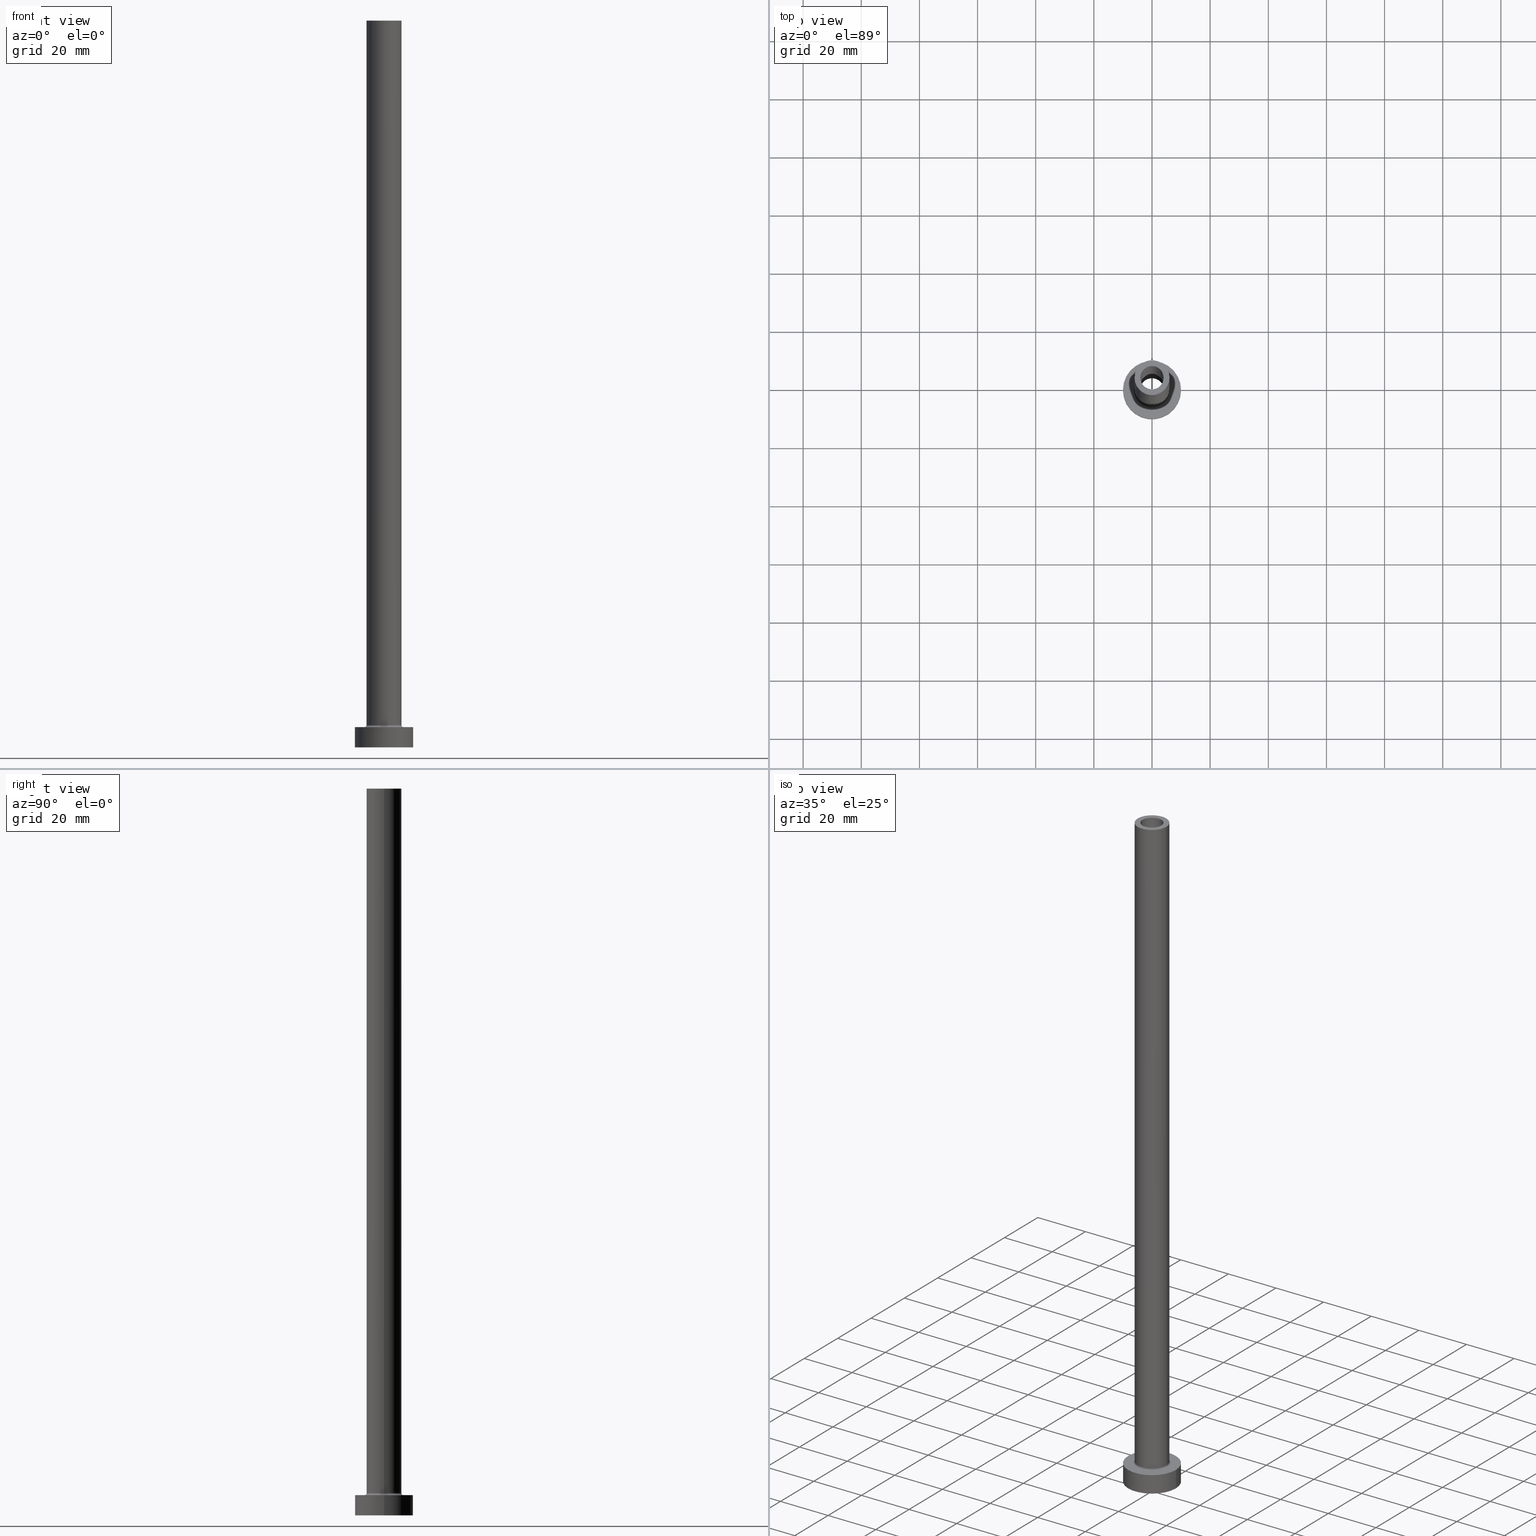
[diagram: canonical four-view strip — front | top / right | iso, engineering-drawing reading convention]
A machine part, canonical four-view strip (front | top / right | iso — engineering-drawing reading convention). The complete STEP part file that produces these views, byte-faithful:
ISO-10303-21;
HEADER;
FILE_DESCRIPTION (( 'STEP AP203' ),
    '1' );
FILE_NAME ('2ead.STEP',
    '2023-02-13T09:09:57',
    ( '' ),
    ( '' ),
    'SwSTEP 2.0',
    'SolidWorks 2019',
    '' );
FILE_SCHEMA (( 'CONFIG_CONTROL_DESIGN' ));
ENDSEC;

DATA;
#1 = DIRECTION ( 'NONE',  ( -1.000000000000000000, 0.000000000000000000, 0.000000000000000000 ) ) ;
#2 = ADVANCED_FACE ( 'NONE', ( #325 ), #118, .F. ) ;
#3 = EDGE_LOOP ( 'NONE', ( #391, #61 ) ) ;
#4 = DIRECTION ( 'NONE',  ( 0.000000000000000000, 0.000000000000000000, 1.000000000000000000 ) ) ;
#5 = PERSON_AND_ORGANIZATION ( #242, #324 ) ;
#6 = ORIENTED_EDGE ( 'NONE', *, *, #298, .T. ) ;
#7 = CARTESIAN_POINT ( 'NONE',  ( 6.700000000000001066, 0.000000000000000000, 7.700000000000012612 ) ) ;
#8 = SHAPE_DEFINITION_REPRESENTATION ( #320, #196 ) ;
#9 = ORIENTED_EDGE ( 'NONE', *, *, #22, .T. ) ;
#10 = DIRECTION ( 'NONE',  ( 1.000000000000000000, 0.000000000000000000, 0.000000000000000000 ) ) ;
#11 = CARTESIAN_POINT ( 'NONE',  ( 4.150000000000000355, 5.082284216461514170E-16, 205.0000000000000284 ) ) ;
#12 = DIRECTION ( 'NONE',  ( 1.000000000000000000, 0.000000000000000000, 0.000000000000000000 ) ) ;
#13 = EDGE_CURVE ( 'NONE', #71, #453, #461, .T. ) ;
#14 = FACE_OUTER_BOUND ( 'NONE', #422, .T. ) ;
#15 = EDGE_CURVE ( 'NONE', #453, #425, #218, .T. ) ;
#16 = LINE ( 'NONE', #272, #119 ) ;
#17 = ORIENTED_EDGE ( 'NONE', *, *, #398, .T. ) ;
#18 = CC_DESIGN_PERSON_AND_ORGANIZATION_ASSIGNMENT ( #437, #35, ( #145 ) ) ;
#19 = ORIENTED_EDGE ( 'NONE', *, *, #101, .T. ) ;
#20 = ORIENTED_EDGE ( 'NONE', *, *, #327, .F. ) ;
#21 = CARTESIAN_POINT ( 'NONE',  ( 0.000000000000000000, 0.000000000000000000, 0.000000000000000000 ) ) ;
#22 = EDGE_CURVE ( 'NONE', #147, #438, #431, .T. ) ;
#23 = ORIENTED_EDGE ( 'NONE', *, *, #124, .F. ) ;
#24 = CARTESIAN_POINT ( 'NONE',  ( -6.000000000000000888, 0.000000000000000000, 250.0000000000000000 ) ) ;
#25 = CIRCLE ( 'NONE', #137, 10.00000000000000000 ) ;
#26 = ORIENTED_EDGE ( 'NONE', *, *, #410, .F. ) ;
#27 = LINE ( 'NONE', #64, #408 ) ;
#28 = AXIS2_PLACEMENT_3D ( 'NONE', #208, #253, #455 ) ;
#29 = CC_DESIGN_APPROVAL ( #179, ( #145 ) ) ;
#30 = VERTEX_POINT ( 'NONE', #328 ) ;
#31 = DIRECTION ( 'NONE',  ( 0.000000000000000000, 0.000000000000000000, -1.000000000000000000 ) ) ;
#32 = EDGE_CURVE ( 'NONE', #316, #404, #299, .T. ) ;
#33 = DIRECTION ( 'NONE',  ( 0.000000000000000000, 0.000000000000000000, -1.000000000000000000 ) ) ;
#34 = CC_DESIGN_PERSON_AND_ORGANIZATION_ASSIGNMENT ( #5, #146, ( #56 ) ) ;
#35 = PERSON_AND_ORGANIZATION_ROLE ( 'creator' ) ;
#36 = DIRECTION ( 'NONE',  ( 0.000000000000000000, 0.000000000000000000, -1.000000000000000000 ) ) ;
#37 = DIRECTION ( 'NONE',  ( 1.000000000000000000, 0.000000000000000000, 0.000000000000000000 ) ) ;
#38 = AXIS2_PLACEMENT_3D ( 'NONE', #392, #382, #207 ) ;
#39 = ORIENTED_EDGE ( 'NONE', *, *, #133, .F. ) ;
#40 = LINE ( 'NONE', #326, #252 ) ;
#41 = ORIENTED_EDGE ( 'NONE', *, *, #447, .F. ) ;
#42 = CARTESIAN_POINT ( 'NONE',  ( 0.000000000000000000, 0.000000000000000000, 7.700000000000012612 ) ) ;
#43 = DIRECTION ( 'NONE',  ( 1.000000000000000000, 0.000000000000000000, 0.000000000000000000 ) ) ;
#44 = FACE_OUTER_BOUND ( 'NONE', #131, .T. ) ;
#45 = AXIS2_PLACEMENT_3D ( 'NONE', #194, #74, #335 ) ;
#46 = CIRCLE ( 'NONE', #371, 10.00000000000000000 ) ;
#47 = CIRCLE ( 'NONE', #169, 10.00000000000000000 ) ;
#48 = FACE_OUTER_BOUND ( 'NONE', #279, .T. ) ;
#49 = CARTESIAN_POINT ( 'NONE',  ( 0.000000000000000000, 0.000000000000000000, 7.700000000000012612 ) ) ;
#50 = DIRECTION ( 'NONE',  ( 0.000000000000000000, 0.000000000000000000, 1.000000000000000000 ) ) ;
#51 =( NAMED_UNIT ( * ) SI_UNIT ( $, .STERADIAN. ) SOLID_ANGLE_UNIT ( ) );
#52 = EDGE_CURVE ( 'NONE', #370, #316, #25, .T. ) ;
#53 = CARTESIAN_POINT ( 'NONE',  ( 4.150000000000000355, 5.082284216461514170E-16, 0.000000000000000000 ) ) ;
#54 = EDGE_LOOP ( 'NONE', ( #343, #121, #6, #265 ) ) ;
#55 = CC_DESIGN_PERSON_AND_ORGANIZATION_ASSIGNMENT ( #60, #387, ( #65 ) ) ;
#56 = PRODUCT_DEFINITION_FORMATION_WITH_SPECIFIED_SOURCE ( 'LIBOVOLN�', '', #65, .NOT_KNOWN. ) ;
#57 = APPROVAL_DATE_TIME ( #130, #179 ) ;
#58 = DIRECTION ( 'NONE',  ( 0.000000000000000000, 0.000000000000000000, 1.000000000000000000 ) ) ;
#59 = CC_DESIGN_DATE_AND_TIME_ASSIGNMENT ( #70, #390, ( #66 ) ) ;
#60 = PERSON_AND_ORGANIZATION ( #242, #324 ) ;
#61 = ORIENTED_EDGE ( 'NONE', *, *, #360, .T. ) ;
#62 = CARTESIAN_POINT ( 'NONE',  ( 0.000000000000000000, 0.000000000000000000, 250.0000000000000000 ) ) ;
#63 = ORIENTED_EDGE ( 'NONE', *, *, #87, .F. ) ;
#64 = CARTESIAN_POINT ( 'NONE',  ( -6.000000000000000888, 0.000000000000000000, 250.0000000000000000 ) ) ;
#65 = PRODUCT ( '2ead', '2ead', '', ( #274 ) ) ;
#66 = SECURITY_CLASSIFICATION ( '', '', #149 ) ;
#67 = DIRECTION ( 'NONE',  ( -0.000000000000000000, -0.000000000000000000, -1.000000000000000000 ) ) ;
#68 = EDGE_LOOP ( 'NONE', ( #348, #281, #103, #41 ) ) ;
#69 = CARTESIAN_POINT ( 'NONE',  ( 10.00000000000000000, 1.224646799147353256E-15, 0.000000000000000000 ) ) ;
#70 = DATE_AND_TIME ( #231, #409 ) ;
#71 = VERTEX_POINT ( 'NONE', #11 ) ;
#72 = DIRECTION ( 'NONE',  ( 0.000000000000000000, 0.000000000000000000, 1.000000000000000000 ) ) ;
#73 = APPROVAL_STATUS ( 'not_yet_approved' ) ;
#74 = DIRECTION ( 'NONE',  ( -0.000000000000000000, -0.000000000000000000, -1.000000000000000000 ) ) ;
#75 = DIRECTION ( 'NONE',  ( 1.000000000000000000, 0.000000000000000000, 0.000000000000000000 ) ) ;
#76 = ADVANCED_FACE ( 'NONE', ( #365, #48 ), #338, .T. ) ;
#77 = DATE_AND_TIME ( #323, #434 ) ;
#78 = CARTESIAN_POINT ( 'NONE',  ( 0.000000000000000000, 0.000000000000000000, 250.0000000000000000 ) ) ;
#79 = CARTESIAN_POINT ( 'NONE',  ( -6.700000000000001066, 8.205133554287267548E-16, 7.700000000000012612 ) ) ;
#80 = PERSON_AND_ORGANIZATION_ROLE ( 'design_supplier' ) ;
#81 = CARTESIAN_POINT ( 'NONE',  ( 0.000000000000000000, 0.000000000000000000, 7.000000000000000000 ) ) ;
#82 = CARTESIAN_POINT ( 'NONE',  ( 0.000000000000000000, 0.000000000000000000, 205.0000000000000284 ) ) ;
#83 = VERTEX_POINT ( 'NONE', #267 ) ;
#84 = MANIFOLD_SOLID_BREP ( 'Odebrat vysunut�m4', #341 ) ;
#85 = ORIENTED_EDGE ( 'NONE', *, *, #13, .F. ) ;
#86 = ADVANCED_FACE ( 'NONE', ( #427 ), #256, .F. ) ;
#87 = EDGE_CURVE ( 'NONE', #243, #404, #293, .T. ) ;
#88 = AXIS2_PLACEMENT_3D ( 'NONE', #79, #292, #117 ) ;
#89 = DIRECTION ( 'NONE',  ( 0.000000000000000000, 0.000000000000000000, -1.000000000000000000 ) ) ;
#90 = CARTESIAN_POINT ( 'NONE',  ( 0.000000000000000000, 0.000000000000000000, 7.000000000000000000 ) ) ;
#91 = VERTEX_POINT ( 'NONE', #235 ) ;
#92 = CYLINDRICAL_SURFACE ( 'NONE', #176, 4.000000000000000000 ) ;
#93 = DIRECTION ( 'NONE',  ( -0.000000000000000000, -0.000000000000000000, -1.000000000000000000 ) ) ;
#94 = APPLICATION_CONTEXT ( 'configuration controlled 3d designs of mechanical parts and assemblies' ) ;
#95 = APPLICATION_PROTOCOL_DEFINITION ( 'international standard', 'config_control_design', 1994, #94 ) ;
#96 = EDGE_LOOP ( 'NONE', ( #39, #375, #429, #23 ) ) ;
#97 = AXIS2_PLACEMENT_3D ( 'NONE', #285, #93, #163 ) ;
#98 = FACE_BOUND ( 'NONE', #396, .T. ) ;
#99 = ORIENTED_EDGE ( 'NONE', *, *, #330, .T. ) ;
#100 = FACE_OUTER_BOUND ( 'NONE', #68, .T. ) ;
#101 = EDGE_CURVE ( 'NONE', #438, #135, #340, .T. ) ;
#102 = CALENDAR_DATE ( 2023, 13, 2 ) ;
#103 = ORIENTED_EDGE ( 'NONE', *, *, #15, .T. ) ;
#104 = DIRECTION ( 'NONE',  ( 0.000000000000000000, 0.000000000000000000, 1.000000000000000000 ) ) ;
#105 = COORDINATED_UNIVERSAL_TIME_OFFSET ( 1, 0, .AHEAD. ) ;
#106 = DIRECTION ( 'NONE',  ( 0.000000000000000000, 0.000000000000000000, 1.000000000000000000 ) ) ;
#107 = CARTESIAN_POINT ( 'NONE',  ( 0.000000000000000000, 0.000000000000000000, 205.0000000000000284 ) ) ;
#108 = CIRCLE ( 'NONE', #38, 4.150000000000000355 ) ;
#109 = APPROVAL_PERSON_ORGANIZATION ( #433, #204, #334 ) ;
#110 = DATE_AND_TIME ( #361, #224 ) ;
#111 = ORIENTED_EDGE ( 'NONE', *, *, #133, .T. ) ;
#112 = DIRECTION ( 'NONE',  ( 0.000000000000000000, 0.000000000000000000, 1.000000000000000000 ) ) ;
#113 = CARTESIAN_POINT ( 'NONE',  ( -4.150000000000000355, 0.000000000000000000, 0.000000000000000000 ) ) ;
#114 = ADVANCED_FACE ( 'NONE', ( #197, #14 ), #120, .F. ) ;
#115 = CARTESIAN_POINT ( 'NONE',  ( 10.00000000000000000, 1.224646799147353256E-15, 7.000000000000000000 ) ) ;
#116 = ADVANCED_FACE ( 'NONE', ( #245 ), #132, .T. ) ;
#117 = DIRECTION ( 'NONE',  ( -1.000000000000000000, 1.224646799147353454E-16, 0.000000000000000000 ) ) ;
#118 = TOROIDAL_SURFACE ( 'NONE', #258, 6.700000000000001066, 0.6999999999999999556 ) ;
#119 = VECTOR ( 'NONE', #89, 1000.000000000000000 ) ;
#120 = PLANE ( 'NONE',  #189 ) ;
#121 = ORIENTED_EDGE ( 'NONE', *, *, #52, .F. ) ;
#122 = VECTOR ( 'NONE', #443, 1000.000000000000000 ) ;
#123 = CIRCLE ( 'NONE', #315, 4.150000000000000355 ) ;
#124 = EDGE_CURVE ( 'NONE', #203, #212, #27, .T. ) ;
#125 = ORIENTED_EDGE ( 'NONE', *, *, #200, .F. ) ;
#126 = CARTESIAN_POINT ( 'NONE',  ( -10.00000000000000000, 0.000000000000000000, 0.000000000000000000 ) ) ;
#127 = ORIENTED_EDGE ( 'NONE', *, *, #401, .T. ) ;
#128 = AXIS2_PLACEMENT_3D ( 'NONE', #107, #260, #151 ) ;
#129 = CARTESIAN_POINT ( 'NONE',  ( 0.000000000000000000, 0.000000000000000000, 216.7379725676967155 ) ) ;
#130 = DATE_AND_TIME ( #167, #416 ) ;
#131 = EDGE_LOOP ( 'NONE', ( #406, #354, #160, #247 ) ) ;
#132 = CYLINDRICAL_SURFACE ( 'NONE', #385, 10.00000000000000000 ) ;
#133 = EDGE_CURVE ( 'NONE', #254, #203, #219, .T. ) ;
#134 = APPLICATION_PROTOCOL_DEFINITION ( 'international standard', 'config_control_design', 1994, #185 ) ;
#135 = VERTEX_POINT ( 'NONE', #314 ) ;
#136 = CARTESIAN_POINT ( 'NONE',  ( -4.000000000000000000, 0.000000000000000000, 250.0000000000000000 ) ) ;
#137 = AXIS2_PLACEMENT_3D ( 'NONE', #81, #225, #232 ) ;
#138 = ORIENTED_EDGE ( 'NONE', *, *, #22, .F. ) ;
#139 = AXIS2_PLACEMENT_3D ( 'NONE', #49, #4, #428 ) ;
#140 = DIRECTION ( 'NONE',  ( -1.000000000000000000, 0.000000000000000000, 0.000000000000000000 ) ) ;
#141 = DESIGN_CONTEXT ( 'detailed design', #94, 'design' ) ;
#142 = EDGE_LOOP ( 'NONE', ( #305, #127, #363, #295 ) ) ;
#143 = ORIENTED_EDGE ( 'NONE', *, *, #199, .F. ) ;
#144 = CARTESIAN_POINT ( 'NONE',  ( 0.000000000000000000, 0.000000000000000000, 250.0000000000000000 ) ) ;
#145 = PRODUCT_DEFINITION ( 'NEZN�M�', '', #56, #141 ) ;
#146 = PERSON_AND_ORGANIZATION_ROLE ( 'creator' ) ;
#147 = VERTEX_POINT ( 'NONE', #136 ) ;
#148 = CARTESIAN_POINT ( 'NONE',  ( -4.000000000000000000, 0.000000000000000000, 205.0000000000000284 ) ) ;
#149 = SECURITY_CLASSIFICATION_LEVEL ( 'unclassified' ) ;
#150 = VERTEX_POINT ( 'NONE', #349 ) ;
#151 = DIRECTION ( 'NONE',  ( 1.000000000000000000, 0.000000000000000000, 0.000000000000000000 ) ) ;
#152 = CARTESIAN_POINT ( 'NONE',  ( 0.000000000000000000, 0.000000000000000000, 7.000000000000000000 ) ) ;
#153 = DIRECTION ( 'NONE',  ( 1.000000000000000000, 0.000000000000000000, 0.000000000000000000 ) ) ;
#154 = DIRECTION ( 'NONE',  ( 1.000000000000000000, 0.000000000000000000, 0.000000000000000000 ) ) ;
#155 = ORIENTED_EDGE ( 'NONE', *, *, #413, .T. ) ;
#156 = AXIS2_PLACEMENT_3D ( 'NONE', #373, #289, #153 ) ;
#157 = EDGE_CURVE ( 'NONE', #254, #83, #351, .T. ) ;
#158 = ADVANCED_FACE ( 'NONE', ( #165 ), #426, .T. ) ;
#159 = ORIENTED_EDGE ( 'NONE', *, *, #291, .F. ) ;
#160 = ORIENTED_EDGE ( 'NONE', *, *, #124, .T. ) ;
#161 = CIRCLE ( 'NONE', #322, 6.000000000000000888 ) ;
#162 = CC_DESIGN_PERSON_AND_ORGANIZATION_ASSIGNMENT ( #174, #80, ( #56 ) ) ;
#163 = DIRECTION ( 'NONE',  ( -1.000000000000000000, 0.000000000000000000, 0.000000000000000000 ) ) ;
#164 = ADVANCED_FACE ( 'NONE', ( #452 ), #172, .T. ) ;
#165 = FACE_OUTER_BOUND ( 'NONE', #271, .T. ) ;
#166 = VECTOR ( 'NONE', #402, 1000.000000000000000 ) ;
#167 = CALENDAR_DATE ( 2023, 13, 2 ) ;
#168 = ORIENTED_EDGE ( 'NONE', *, *, #398, .F. ) ;
#169 = AXIS2_PLACEMENT_3D ( 'NONE', #223, #337, #10 ) ;
#170 = CARTESIAN_POINT ( 'NONE',  ( 6.000000000000000888, 7.347880794884120722E-16, 250.0000000000000000 ) ) ;
#171 = ORIENTED_EDGE ( 'NONE', *, *, #227, .T. ) ;
#172 = CYLINDRICAL_SURFACE ( 'NONE', #240, 6.000000000000000888 ) ;
#173 = CYLINDRICAL_SURFACE ( 'NONE', #336, 4.150000000000000355 ) ;
#174 = PERSON_AND_ORGANIZATION ( #242, #324 ) ;
#175 = DIRECTION ( 'NONE',  ( -1.000000000000000000, 0.000000000000000000, 0.000000000000000000 ) ) ;
#176 = AXIS2_PLACEMENT_3D ( 'NONE', #211, #248, #140 ) ;
#177 = DIRECTION ( 'NONE',  ( -0.000000000000000000, -0.000000000000000000, -1.000000000000000000 ) ) ;
#178 = CC_DESIGN_APPROVAL ( #204, ( #56 ) ) ;
#179 = APPROVAL ( #350, 'NEUR�EN�' ) ;
#180 = PERSON_AND_ORGANIZATION_ROLE ( 'classification_officer' ) ;
#181 = ORIENTED_EDGE ( 'NONE', *, *, #199, .T. ) ;
#182 = DIRECTION ( 'NONE',  ( 0.000000000000000000, 0.000000000000000000, -1.000000000000000000 ) ) ;
#183 = COORDINATED_UNIVERSAL_TIME_OFFSET ( 1, 0, .AHEAD. ) ;
#184 = ORIENTED_EDGE ( 'NONE', *, *, #101, .F. ) ;
#185 = APPLICATION_CONTEXT ( 'configuration controlled 3d designs of mechanical parts and assemblies' ) ;
#186 = LINE ( 'NONE', #333, #306 ) ;
#187 = COORDINATED_UNIVERSAL_TIME_OFFSET ( 1, 0, .AHEAD. ) ;
#188 = ORIENTED_EDGE ( 'NONE', *, *, #418, .F. ) ;
#189 = AXIS2_PLACEMENT_3D ( 'NONE', #374, #50, #456 ) ;
#190 = ADVANCED_FACE ( 'NONE', ( #98, #317 ), #249, .F. ) ;
#191 = DIRECTION ( 'NONE',  ( -0.000000000000000000, -0.000000000000000000, -1.000000000000000000 ) ) ;
#192 = AXIS2_PLACEMENT_3D ( 'NONE', #144, #177, #1 ) ;
#193 =( GEOMETRIC_REPRESENTATION_CONTEXT ( 3 ) GLOBAL_UNCERTAINTY_ASSIGNED_CONTEXT ( ( #216 ) ) GLOBAL_UNIT_ASSIGNED_CONTEXT ( ( #309, #450, #51 ) ) REPRESENTATION_CONTEXT ( 'NONE', 'WORKASPACE' ) );
#194 = CARTESIAN_POINT ( 'NONE',  ( 0.000000000000000000, 0.000000000000000000, 0.000000000000000000 ) ) ;
#195 = CARTESIAN_POINT ( 'NONE',  ( 0.000000000000000000, 0.000000000000000000, 7.000000000000000000 ) ) ;
#196 = ADVANCED_BREP_SHAPE_REPRESENTATION ( '2ead', ( #84, #395 ), #193 ) ;
#197 = FACE_BOUND ( 'NONE', #210, .T. ) ;
#198 = ADVANCED_FACE ( 'NONE', ( #353 ), #347, .F. ) ;
#199 = EDGE_CURVE ( 'NONE', #438, #147, #394, .T. ) ;
#200 = EDGE_CURVE ( 'NONE', #83, #212, #161, .T. ) ;
#201 = CIRCLE ( 'NONE', #88, 0.7000000000000000666 ) ;
#202 = ADVANCED_FACE ( 'NONE', ( #417 ), #92, .F. ) ;
#203 = VERTEX_POINT ( 'NONE', #24 ) ;
#204 = APPROVAL ( #294, 'NEUR�EN�' ) ;
#205 = AXIS2_PLACEMENT_3D ( 'NONE', #195, #264, #75 ) ;
#206 = LOCAL_TIME ( 10, 9, 57.00000000000000000, #183 ) ;
#207 = DIRECTION ( 'NONE',  ( 1.000000000000000000, 0.000000000000000000, 0.000000000000000000 ) ) ;
#208 = CARTESIAN_POINT ( 'NONE',  ( 0.000000000000000000, 0.000000000000000000, 0.000000000000000000 ) ) ;
#209 = ADVANCED_FACE ( 'NONE', ( #100 ), #173, .F. ) ;
#210 = EDGE_LOOP ( 'NONE', ( #393, #17 ) ) ;
#211 = CARTESIAN_POINT ( 'NONE',  ( 0.000000000000000000, 0.000000000000000000, 250.0000000000000000 ) ) ;
#212 = VERTEX_POINT ( 'NONE', #458 ) ;
#213 = DIRECTION ( 'NONE',  ( 1.000000000000000000, 0.000000000000000000, 0.000000000000000000 ) ) ;
#214 = ORIENTED_EDGE ( 'NONE', *, *, #291, .T. ) ;
#215 = DIRECTION ( 'NONE',  ( -1.000000000000000000, 0.000000000000000000, 0.000000000000000000 ) ) ;
#216 = UNCERTAINTY_MEASURE_WITH_UNIT (LENGTH_MEASURE( 1.000000000000000082E-05 ), #309, 'distance_accuracy_value', 'NONE');
#217 = DIRECTION ( 'NONE',  ( 1.000000000000000000, 0.000000000000000000, -0.000000000000000000 ) ) ;
#218 = CIRCLE ( 'NONE', #45, 4.150000000000000355 ) ;
#219 = CIRCLE ( 'NONE', #378, 6.000000000000000888 ) ;
#220 = PERSON_AND_ORGANIZATION ( #242, #324 ) ;
#221 = CARTESIAN_POINT ( 'NONE',  ( 4.150000000000000355, 5.082284216461514170E-16, 216.7379725676967155 ) ) ;
#222 = CIRCLE ( 'NONE', #459, 6.000000000000000888 ) ;
#223 = CARTESIAN_POINT ( 'NONE',  ( 0.000000000000000000, 0.000000000000000000, 7.000000000000000000 ) ) ;
#224 = LOCAL_TIME ( 10, 9, 57.00000000000000000, #187 ) ;
#225 = DIRECTION ( 'NONE',  ( 0.000000000000000000, 0.000000000000000000, 1.000000000000000000 ) ) ;
#226 = DIRECTION ( 'NONE',  ( 0.000000000000000000, 0.000000000000000000, 1.000000000000000000 ) ) ;
#227 = EDGE_CURVE ( 'NONE', #71, #30, #108, .T. ) ;
#228 = APPROVAL_DATE_TIME ( #110, #250 ) ;
#229 = EDGE_LOOP ( 'NONE', ( #412, #125, #99, #376 ) ) ;
#230 = FACE_OUTER_BOUND ( 'NONE', #457, .T. ) ;
#231 = CALENDAR_DATE ( 2023, 13, 2 ) ;
#232 = DIRECTION ( 'NONE',  ( 1.000000000000000000, 0.000000000000000000, 0.000000000000000000 ) ) ;
#233 = DIRECTION ( 'NONE',  ( 0.000000000000000000, 0.000000000000000000, 1.000000000000000000 ) ) ;
#234 = CIRCLE ( 'NONE', #156, 4.000000000000000000 ) ;
#235 = CARTESIAN_POINT ( 'NONE',  ( -6.700000000000001066, 8.205133554287267548E-16, 7.000000000000006217 ) ) ;
#236 = EDGE_LOOP ( 'NONE', ( #85, #171, #332, #381 ) ) ;
#237 = CC_DESIGN_PERSON_AND_ORGANIZATION_ASSIGNMENT ( #284, #180, ( #66 ) ) ;
#238 = AXIS2_PLACEMENT_3D ( 'NONE', #78, #106, #43 ) ;
#239 = CIRCLE ( 'NONE', #352, 0.7000000000000000666 ) ;
#240 = AXIS2_PLACEMENT_3D ( 'NONE', #384, #414, #215 ) ;
#241 = APPROVAL_ROLE ( '' ) ;
#242 = PERSON ( 'NEUR�EN�', 'NEUR�EN�', 'NEUR�EN�', ('NEUR�EN�'), ('NEUR�EN�'), ('NEUR�EN�') ) ;
#243 = VERTEX_POINT ( 'NONE', #126 ) ;
#244 = EDGE_CURVE ( 'NONE', #425, #453, #123, .T. ) ;
#245 = FACE_OUTER_BOUND ( 'NONE', #54, .T. ) ;
#246 = CARTESIAN_POINT ( 'NONE',  ( 0.000000000000000000, 0.000000000000000000, 0.000000000000000000 ) ) ;
#247 = ORIENTED_EDGE ( 'NONE', *, *, #261, .T. ) ;
#248 = DIRECTION ( 'NONE',  ( 0.000000000000000000, 0.000000000000000000, -1.000000000000000000 ) ) ;
#249 = PLANE ( 'NONE',  #28 ) ;
#250 = APPROVAL ( #73, 'NEUR�EN�' ) ;
#251 = AXIS2_PLACEMENT_3D ( 'NONE', #62, #58, #278 ) ;
#252 = VECTOR ( 'NONE', #182, 1000.000000000000000 ) ;
#253 = DIRECTION ( 'NONE',  ( 0.000000000000000000, 0.000000000000000000, 1.000000000000000000 ) ) ;
#254 = VERTEX_POINT ( 'NONE', #364 ) ;
#255 = DIRECTION ( 'NONE',  ( -1.000000000000000000, 0.000000000000000000, 0.000000000000000000 ) ) ;
#256 = CYLINDRICAL_SURFACE ( 'NONE', #307, 4.000000000000000000 ) ;
#257 = CARTESIAN_POINT ( 'NONE',  ( 0.000000000000000000, 0.000000000000000000, 250.0000000000000000 ) ) ;
#258 = AXIS2_PLACEMENT_3D ( 'NONE', #435, #367, #263 ) ;
#259 = DIRECTION ( 'NONE',  ( 1.000000000000000000, 0.000000000000000000, -0.000000000000000000 ) ) ;
#260 = DIRECTION ( 'NONE',  ( 0.000000000000000000, 0.000000000000000000, 1.000000000000000000 ) ) ;
#261 = EDGE_CURVE ( 'NONE', #212, #83, #432, .T. ) ;
#262 = APPROVAL_DATE_TIME ( #77, #204 ) ;
#263 = DIRECTION ( 'NONE',  ( 1.000000000000000000, 0.000000000000000000, 0.000000000000000000 ) ) ;
#264 = DIRECTION ( 'NONE',  ( -0.000000000000000000, -0.000000000000000000, -1.000000000000000000 ) ) ;
#265 = ORIENTED_EDGE ( 'NONE', *, *, #87, .T. ) ;
#266 = CARTESIAN_POINT ( 'NONE',  ( 4.000000000000000000, 4.898587196589411843E-16, 250.0000000000000000 ) ) ;
#267 = CARTESIAN_POINT ( 'NONE',  ( 6.000000000000000888, 7.347880794884120722E-16, 7.700000000000012612 ) ) ;
#268 = VECTOR ( 'NONE', #454, 1000.000000000000000 ) ;
#269 = APPROVAL_PERSON_ORGANIZATION ( #220, #250, #460 ) ;
#270 = CARTESIAN_POINT ( 'NONE',  ( 0.000000000000000000, 0.000000000000000000, 0.000000000000000000 ) ) ;
#271 = EDGE_LOOP ( 'NONE', ( #446, #311, #383, #388 ) ) ;
#272 = CARTESIAN_POINT ( 'NONE',  ( -4.150000000000000355, 0.000000000000000000, 216.7379725676967155 ) ) ;
#273 = AXIS2_PLACEMENT_3D ( 'NONE', #152, #302, #259 ) ;
#274 = MECHANICAL_CONTEXT ( 'NONE', #185, 'mechanical' ) ;
#275 = EDGE_LOOP ( 'NONE', ( #184, #181, #214, #168 ) ) ;
#276 = DIRECTION ( 'NONE',  ( -0.000000000000000000, -0.000000000000000000, -1.000000000000000000 ) ) ;
#277 = AXIS2_PLACEMENT_3D ( 'NONE', #257, #233, #217 ) ;
#278 = DIRECTION ( 'NONE',  ( 1.000000000000000000, 0.000000000000000000, 0.000000000000000000 ) ) ;
#279 = EDGE_LOOP ( 'NONE', ( #313, #155 ) ) ;
#280 = CARTESIAN_POINT ( 'NONE',  ( 0.000000000000000000, 0.000000000000000000, 250.0000000000000000 ) ) ;
#281 = ORIENTED_EDGE ( 'NONE', *, *, #13, .T. ) ;
#282 = DIRECTION ( 'NONE',  ( 0.000000000000000000, 0.000000000000000000, 1.000000000000000000 ) ) ;
#283 = CC_DESIGN_DATE_AND_TIME_ASSIGNMENT ( #356, #286, ( #145 ) ) ;
#284 = PERSON_AND_ORGANIZATION ( #242, #324 ) ;
#285 = CARTESIAN_POINT ( 'NONE',  ( 0.000000000000000000, 0.000000000000000000, 7.000000000000000000 ) ) ;
#286 = DATE_TIME_ROLE ( 'creation_date' ) ;
#287 = DIRECTION ( 'NONE',  ( -0.000000000000000000, -0.000000000000000000, -1.000000000000000000 ) ) ;
#288 = PRODUCT_RELATED_PRODUCT_CATEGORY ( 'detail', '', ( #65 ) ) ;
#289 = DIRECTION ( 'NONE',  ( 0.000000000000000000, 0.000000000000000000, 1.000000000000000000 ) ) ;
#290 = ORIENTED_EDGE ( 'NONE', *, *, #244, .F. ) ;
#291 = EDGE_CURVE ( 'NONE', #147, #346, #40, .T. ) ;
#292 = DIRECTION ( 'NONE',  ( 1.224646799147353207E-16, 1.000000000000000000, -0.000000000000000000 ) ) ;
#293 = CIRCLE ( 'NONE', #442, 10.00000000000000000 ) ;
#294 = APPROVAL_STATUS ( 'not_yet_approved' ) ;
#295 = ORIENTED_EDGE ( 'NONE', *, *, #330, .F. ) ;
#296 = AXIS2_PLACEMENT_3D ( 'NONE', #42, #226, #368 ) ;
#297 = DIRECTION ( 'NONE',  ( -0.000000000000000000, -0.000000000000000000, -1.000000000000000000 ) ) ;
#298 = EDGE_CURVE ( 'NONE', #370, #243, #186, .T. ) ;
#299 = LINE ( 'NONE', #115, #344 ) ;
#300 = CARTESIAN_POINT ( 'NONE',  ( 0.000000000000000000, 0.000000000000000000, 0.000000000000000000 ) ) ;
#301 = EDGE_CURVE ( 'NONE', #203, #254, #222, .T. ) ;
#302 = DIRECTION ( 'NONE',  ( 0.000000000000000000, 0.000000000000000000, 1.000000000000000000 ) ) ;
#303 = DIRECTION ( 'NONE',  ( 1.000000000000000000, 0.000000000000000000, 0.000000000000000000 ) ) ;
#304 = CARTESIAN_POINT ( 'NONE',  ( 4.000000000000000000, 4.898587196589411843E-16, 250.0000000000000000 ) ) ;
#305 = ORIENTED_EDGE ( 'NONE', *, *, #261, .F. ) ;
#306 = VECTOR ( 'NONE', #297, 1000.000000000000000 ) ;
#307 = AXIS2_PLACEMENT_3D ( 'NONE', #357, #36, #175 ) ;
#308 = CC_DESIGN_APPROVAL ( #250, ( #66 ) ) ;
#309 =( LENGTH_UNIT ( ) NAMED_UNIT ( * ) SI_UNIT ( .MILLI., .METRE. ) );
#310 = ORIENTED_EDGE ( 'NONE', *, *, #227, .F. ) ;
#311 = ORIENTED_EDGE ( 'NONE', *, *, #32, .T. ) ;
#312 = DIRECTION ( 'NONE',  ( -0.000000000000000000, -0.000000000000000000, -1.000000000000000000 ) ) ;
#313 = ORIENTED_EDGE ( 'NONE', *, *, #52, .T. ) ;
#314 = CARTESIAN_POINT ( 'NONE',  ( 4.000000000000000000, 4.898587196589411843E-16, 205.0000000000000284 ) ) ;
#315 = AXIS2_PLACEMENT_3D ( 'NONE', #21, #312, #380 ) ;
#316 = VERTEX_POINT ( 'NONE', #397 ) ;
#317 = FACE_OUTER_BOUND ( 'NONE', #451, .T. ) ;
#318 = EDGE_LOOP ( 'NONE', ( #9, #19, #188, #159 ) ) ;
#319 = DIRECTION ( 'NONE',  ( -1.000000000000000000, 0.000000000000000000, 0.000000000000000000 ) ) ;
#320 = PRODUCT_DEFINITION_SHAPE ( 'NONE', 'NONE',  #145 ) ;
#321 = DIRECTION ( 'NONE',  ( -1.000000000000000000, 0.000000000000000000, 0.000000000000000000 ) ) ;
#322 = AXIS2_PLACEMENT_3D ( 'NONE', #423, #282, #355 ) ;
#323 = CALENDAR_DATE ( 2023, 13, 2 ) ;
#324 = ORGANIZATION ( 'NEUR�EN�', 'NEUR�EN�', '' ) ;
#325 = FACE_OUTER_BOUND ( 'NONE', #142, .T. ) ;
#326 = CARTESIAN_POINT ( 'NONE',  ( -4.000000000000000000, 0.000000000000000000, 250.0000000000000000 ) ) ;
#327 = EDGE_CURVE ( 'NONE', #30, #71, #424, .T. ) ;
#328 = CARTESIAN_POINT ( 'NONE',  ( -4.150000000000000355, 0.000000000000000000, 205.0000000000000284 ) ) ;
#329 = DIRECTION ( 'NONE',  ( 0.000000000000000000, -1.000000000000000000, 0.000000000000000000 ) ) ;
#330 = EDGE_CURVE ( 'NONE', #83, #150, #239, .T. ) ;
#331 = COORDINATED_UNIVERSAL_TIME_OFFSET ( 1, 0, .AHEAD. ) ;
#332 = ORIENTED_EDGE ( 'NONE', *, *, #447, .T. ) ;
#333 = CARTESIAN_POINT ( 'NONE',  ( -10.00000000000000000, 0.000000000000000000, 7.000000000000000000 ) ) ;
#334 = APPROVAL_ROLE ( '' ) ;
#335 = DIRECTION ( 'NONE',  ( 1.000000000000000000, 0.000000000000000000, 0.000000000000000000 ) ) ;
#336 = AXIS2_PLACEMENT_3D ( 'NONE', #389, #33, #321 ) ;
#337 = DIRECTION ( 'NONE',  ( 0.000000000000000000, 0.000000000000000000, 1.000000000000000000 ) ) ;
#338 = PLANE ( 'NONE',  #273 ) ;
#339 = PLANE ( 'NONE',  #277 ) ;
#340 = LINE ( 'NONE', #304, #122 ) ;
#341 = CLOSED_SHELL ( 'NONE', ( #202, #209, #2, #164, #158, #116, #76, #190, #372, #358, #369, #198, #114, #86 ) ) ;
#342 = CIRCLE ( 'NONE', #205, 6.700000000000001066 ) ;
#343 = ORIENTED_EDGE ( 'NONE', *, *, #32, .F. ) ;
#344 = VECTOR ( 'NONE', #287, 1000.000000000000000 ) ;
#345 = DIRECTION ( 'NONE',  ( 1.000000000000000000, 0.000000000000000000, 0.000000000000000000 ) ) ;
#346 = VERTEX_POINT ( 'NONE', #148 ) ;
#347 = CYLINDRICAL_SURFACE ( 'NONE', #444, 4.150000000000000355 ) ;
#348 = ORIENTED_EDGE ( 'NONE', *, *, #327, .T. ) ;
#349 = CARTESIAN_POINT ( 'NONE',  ( 6.700000000000001066, 0.000000000000000000, 7.000000000000006217 ) ) ;
#350 = APPROVAL_STATUS ( 'not_yet_approved' ) ;
#351 = LINE ( 'NONE', #170, #268 ) ;
#352 = AXIS2_PLACEMENT_3D ( 'NONE', #7, #329, #439 ) ;
#353 = FACE_OUTER_BOUND ( 'NONE', #236, .T. ) ;
#354 = ORIENTED_EDGE ( 'NONE', *, *, #301, .F. ) ;
#355 = DIRECTION ( 'NONE',  ( 1.000000000000000000, 0.000000000000000000, 0.000000000000000000 ) ) ;
#356 = DATE_AND_TIME ( #102, #206 ) ;
#357 = CARTESIAN_POINT ( 'NONE',  ( 0.000000000000000000, 0.000000000000000000, 250.0000000000000000 ) ) ;
#358 = ADVANCED_FACE ( 'NONE', ( #366, #230 ), #339, .T. ) ;
#359 = CYLINDRICAL_SURFACE ( 'NONE', #192, 6.000000000000000888 ) ;
#360 = EDGE_CURVE ( 'NONE', #91, #150, #342, .T. ) ;
#361 = CALENDAR_DATE ( 2023, 13, 2 ) ;
#362 = APPROVAL_PERSON_ORGANIZATION ( #411, #179, #241 ) ;
#363 = ORIENTED_EDGE ( 'NONE', *, *, #407, .F. ) ;
#364 = CARTESIAN_POINT ( 'NONE',  ( 6.000000000000000888, 7.347880794884120722E-16, 250.0000000000000000 ) ) ;
#365 = FACE_BOUND ( 'NONE', #3, .T. ) ;
#366 = FACE_BOUND ( 'NONE', #399, .T. ) ;
#367 = DIRECTION ( 'NONE',  ( 0.000000000000000000, 0.000000000000000000, 1.000000000000000000 ) ) ;
#368 = DIRECTION ( 'NONE',  ( 1.000000000000000000, 0.000000000000000000, 0.000000000000000000 ) ) ;
#369 = ADVANCED_FACE ( 'NONE', ( #441 ), #449, .F. ) ;
#370 = VERTEX_POINT ( 'NONE', #400 ) ;
#371 = AXIS2_PLACEMENT_3D ( 'NONE', #300, #112, #37 ) ;
#372 = ADVANCED_FACE ( 'NONE', ( #44 ), #359, .T. ) ;
#373 = CARTESIAN_POINT ( 'NONE',  ( 0.000000000000000000, 0.000000000000000000, 205.0000000000000284 ) ) ;
#374 = CARTESIAN_POINT ( 'NONE',  ( 0.000000000000000000, 0.000000000000000000, 205.0000000000000284 ) ) ;
#375 = ORIENTED_EDGE ( 'NONE', *, *, #157, .T. ) ;
#376 = ORIENTED_EDGE ( 'NONE', *, *, #360, .F. ) ;
#377 = COORDINATED_UNIVERSAL_TIME_OFFSET ( 1, 0, .AHEAD. ) ;
#378 = AXIS2_PLACEMENT_3D ( 'NONE', #280, #420, #213 ) ;
#379 = CIRCLE ( 'NONE', #128, 4.000000000000000000 ) ;
#380 = DIRECTION ( 'NONE',  ( 1.000000000000000000, 0.000000000000000000, 0.000000000000000000 ) ) ;
#381 = ORIENTED_EDGE ( 'NONE', *, *, #244, .T. ) ;
#382 = DIRECTION ( 'NONE',  ( 0.000000000000000000, 0.000000000000000000, 1.000000000000000000 ) ) ;
#383 = ORIENTED_EDGE ( 'NONE', *, *, #410, .T. ) ;
#384 = CARTESIAN_POINT ( 'NONE',  ( 0.000000000000000000, 0.000000000000000000, 250.0000000000000000 ) ) ;
#385 = AXIS2_PLACEMENT_3D ( 'NONE', #90, #67, #255 ) ;
#386 = AXIS2_PLACEMENT_3D ( 'NONE', #82, #72, #303 ) ;
#387 = PERSON_AND_ORGANIZATION_ROLE ( 'design_owner' ) ;
#388 = ORIENTED_EDGE ( 'NONE', *, *, #298, .F. ) ;
#389 = CARTESIAN_POINT ( 'NONE',  ( 0.000000000000000000, 0.000000000000000000, 216.7379725676967155 ) ) ;
#390 = DATE_TIME_ROLE ( 'classification_date' ) ;
#391 = ORIENTED_EDGE ( 'NONE', *, *, #407, .T. ) ;
#392 = CARTESIAN_POINT ( 'NONE',  ( 0.000000000000000000, 0.000000000000000000, 205.0000000000000284 ) ) ;
#393 = ORIENTED_EDGE ( 'NONE', *, *, #418, .T. ) ;
#394 = CIRCLE ( 'NONE', #251, 4.000000000000000000 ) ;
#395 = AXIS2_PLACEMENT_3D ( 'NONE', #246, #421, #345 ) ;
#396 = EDGE_LOOP ( 'NONE', ( #290, #419 ) ) ;
#397 = CARTESIAN_POINT ( 'NONE',  ( 10.00000000000000000, 1.224646799147353256E-15, 7.000000000000000000 ) ) ;
#398 = EDGE_CURVE ( 'NONE', #135, #346, #234, .T. ) ;
#399 = EDGE_LOOP ( 'NONE', ( #138, #143 ) ) ;
#400 = CARTESIAN_POINT ( 'NONE',  ( -10.00000000000000000, 0.000000000000000000, 7.000000000000000000 ) ) ;
#401 = EDGE_CURVE ( 'NONE', #212, #91, #201, .T. ) ;
#402 = DIRECTION ( 'NONE',  ( 0.000000000000000000, 0.000000000000000000, -1.000000000000000000 ) ) ;
#403 = CARTESIAN_POINT ( 'NONE',  ( 0.000000000000000000, 0.000000000000000000, 250.0000000000000000 ) ) ;
#404 = VERTEX_POINT ( 'NONE', #69 ) ;
#405 = DIRECTION ( 'NONE',  ( 0.000000000000000000, 0.000000000000000000, 1.000000000000000000 ) ) ;
#406 = ORIENTED_EDGE ( 'NONE', *, *, #157, .F. ) ;
#407 = EDGE_CURVE ( 'NONE', #150, #91, #415, .T. ) ;
#408 = VECTOR ( 'NONE', #276, 1000.000000000000000 ) ;
#409 = LOCAL_TIME ( 10, 9, 57.00000000000000000, #105 ) ;
#410 = EDGE_CURVE ( 'NONE', #404, #243, #46, .T. ) ;
#411 = PERSON_AND_ORGANIZATION ( #242, #324 ) ;
#412 = ORIENTED_EDGE ( 'NONE', *, *, #401, .F. ) ;
#413 = EDGE_CURVE ( 'NONE', #316, #370, #47, .T. ) ;
#414 = DIRECTION ( 'NONE',  ( -0.000000000000000000, -0.000000000000000000, -1.000000000000000000 ) ) ;
#415 = CIRCLE ( 'NONE', #448, 6.700000000000001066 ) ;
#416 = LOCAL_TIME ( 10, 9, 57.00000000000000000, #377 ) ;
#417 = FACE_OUTER_BOUND ( 'NONE', #318, .T. ) ;
#418 = EDGE_CURVE ( 'NONE', #346, #135, #379, .T. ) ;
#419 = ORIENTED_EDGE ( 'NONE', *, *, #15, .F. ) ;
#420 = DIRECTION ( 'NONE',  ( 0.000000000000000000, 0.000000000000000000, 1.000000000000000000 ) ) ;
#421 = DIRECTION ( 'NONE',  ( 0.000000000000000000, 0.000000000000000000, 1.000000000000000000 ) ) ;
#422 = EDGE_LOOP ( 'NONE', ( #20, #310 ) ) ;
#423 = CARTESIAN_POINT ( 'NONE',  ( 0.000000000000000000, 0.000000000000000000, 7.700000000000012612 ) ) ;
#424 = CIRCLE ( 'NONE', #386, 4.150000000000000355 ) ;
#425 = VERTEX_POINT ( 'NONE', #113 ) ;
#426 = CYLINDRICAL_SURFACE ( 'NONE', #97, 10.00000000000000000 ) ;
#427 = FACE_OUTER_BOUND ( 'NONE', #275, .T. ) ;
#428 = DIRECTION ( 'NONE',  ( 1.000000000000000000, 0.000000000000000000, 0.000000000000000000 ) ) ;
#429 = ORIENTED_EDGE ( 'NONE', *, *, #200, .T. ) ;
#430 = CARTESIAN_POINT ( 'NONE',  ( 0.000000000000000000, 0.000000000000000000, 7.000000000000000000 ) ) ;
#431 = CIRCLE ( 'NONE', #238, 4.000000000000000000 ) ;
#432 = CIRCLE ( 'NONE', #296, 6.000000000000000888 ) ;
#433 = PERSON_AND_ORGANIZATION ( #242, #324 ) ;
#434 = LOCAL_TIME ( 10, 9, 57.00000000000000000, #331 ) ;
#435 = CARTESIAN_POINT ( 'NONE',  ( 0.000000000000000000, 0.000000000000000000, 7.700000000000012612 ) ) ;
#436 = DIRECTION ( 'NONE',  ( 1.000000000000000000, 0.000000000000000000, 0.000000000000000000 ) ) ;
#437 = PERSON_AND_ORGANIZATION ( #242, #324 ) ;
#438 = VERTEX_POINT ( 'NONE', #266 ) ;
#439 = DIRECTION ( 'NONE',  ( 0.000000000000000000, 0.000000000000000000, -1.000000000000000000 ) ) ;
#440 = ORIENTED_EDGE ( 'NONE', *, *, #301, .T. ) ;
#441 = FACE_OUTER_BOUND ( 'NONE', #229, .T. ) ;
#442 = AXIS2_PLACEMENT_3D ( 'NONE', #270, #405, #154 ) ;
#443 = DIRECTION ( 'NONE',  ( 0.000000000000000000, 0.000000000000000000, -1.000000000000000000 ) ) ;
#444 = AXIS2_PLACEMENT_3D ( 'NONE', #129, #31, #319 ) ;
#445 = CC_DESIGN_SECURITY_CLASSIFICATION ( #66, ( #56 ) ) ;
#446 = ORIENTED_EDGE ( 'NONE', *, *, #413, .F. ) ;
#447 = EDGE_CURVE ( 'NONE', #30, #425, #16, .T. ) ;
#448 = AXIS2_PLACEMENT_3D ( 'NONE', #430, #191, #436 ) ;
#449 = TOROIDAL_SURFACE ( 'NONE', #139, 6.700000000000001066, 0.6999999999999999556 ) ;
#450 =( NAMED_UNIT ( * ) PLANE_ANGLE_UNIT ( ) SI_UNIT ( $, .RADIAN. ) );
#451 = EDGE_LOOP ( 'NONE', ( #63, #26 ) ) ;
#452 = FACE_OUTER_BOUND ( 'NONE', #96, .T. ) ;
#453 = VERTEX_POINT ( 'NONE', #53 ) ;
#454 = DIRECTION ( 'NONE',  ( -0.000000000000000000, -0.000000000000000000, -1.000000000000000000 ) ) ;
#455 = DIRECTION ( 'NONE',  ( 1.000000000000000000, 0.000000000000000000, -0.000000000000000000 ) ) ;
#456 = DIRECTION ( 'NONE',  ( 1.000000000000000000, 0.000000000000000000, -0.000000000000000000 ) ) ;
#457 = EDGE_LOOP ( 'NONE', ( #440, #111 ) ) ;
#458 = CARTESIAN_POINT ( 'NONE',  ( -6.000000000000000888, 0.000000000000000000, 7.700000000000012612 ) ) ;
#459 = AXIS2_PLACEMENT_3D ( 'NONE', #403, #104, #12 ) ;
#460 = APPROVAL_ROLE ( '' ) ;
#461 = LINE ( 'NONE', #221, #166 ) ;
ENDSEC;
END-ISO-10303-21;
